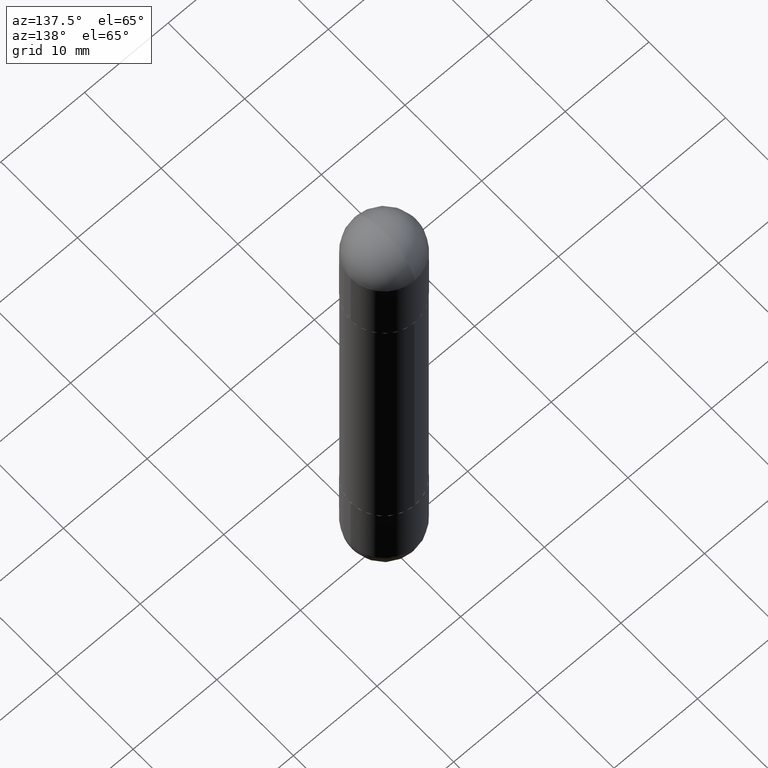
[diagram: clean part render]
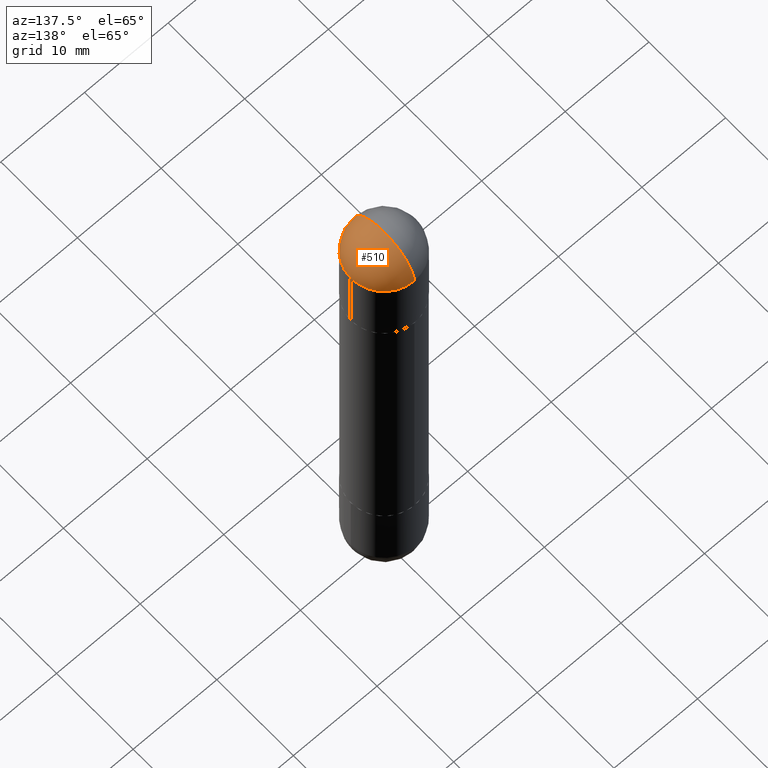
[diagram: same view with one face highlighted and labeled with its STEP entity id]
A machine part, auxiliary view. The second image highlights one B-rep face of the part: STEP entity #510.
In plain terms, the highlighted spherical surface has radius 3.9688 mm.
Its self-contained STEP definition (entity closure, byte-faithful):
#26 = DIRECTION ( 'NONE',  ( -6.982962677686265922E-15, -1.000000000000000000, 0.000000000000000000 ) ) ;
#46 = EDGE_LOOP ( 'NONE', ( #189, #570, #107, #465 ) ) ;
#101 = CARTESIAN_POINT ( 'NONE',  ( 1.091087918388535577E-15, 0.1562499999999916733, -0.1562500000000000000 ) ) ;
#106 = DIRECTION ( 'NONE',  ( 2.445468806185136597E-29, -3.491481338843145583E-15, 1.000000000000000000 ) ) ;
#107 = ORIENTED_EDGE ( 'NONE', *, *, #258, .T. ) ;
#139 = DIRECTION ( 'NONE',  ( -1.000000000000000000, 6.982962677686265922E-15, 4.883557194083112340E-29 ) ) ;
#157 = CARTESIAN_POINT ( 'NONE',  ( 5.400447736582527652E-29, -8.657341756053672891E-15, -0.1562500000000005551 ) ) ;
#184 = AXIS2_PLACEMENT_3D ( 'NONE', #702, #644, #324 ) ;
#189 = ORIENTED_EDGE ( 'NONE', *, *, #386, .F. ) ;
#201 = CARTESIAN_POINT ( 'NONE',  ( 5.789233224183170584E-29, -9.193318162129576161E-15, -3.073328992872296367E-16 ) ) ;
#206 = CARTESIAN_POINT ( 'NONE',  ( 5.731567514496413899E-29, -8.183159387913622595E-15, -0.1562500000000005551 ) ) ;
#215 = DIRECTION ( 'NONE',  ( 1.000000000000000000, -6.860497997771530774E-15, -4.840798879624142912E-29 ) ) ;
#258 = EDGE_CURVE ( 'NONE', #319, #645, #526, .T. ) ;
#264 = FACE_OUTER_BOUND ( 'NONE', #46, .T. ) ;
#267 = AXIS2_PLACEMENT_3D ( 'NONE', #206, #106, #804 ) ;
#301 = AXIS2_PLACEMENT_3D ( 'NONE', #157, #139, #26 ) ;
#310 = VERTEX_POINT ( 'NONE', #101 ) ;
#319 = VERTEX_POINT ( 'NONE', #556 ) ;
#324 = DIRECTION ( 'NONE',  ( 1.000000000000000000, -6.982962677686262766E-15, 0.000000000000000000 ) ) ;
#342 = AXIS2_PLACEMENT_3D ( 'NONE', #807, #630, #437 ) ;
#386 = EDGE_CURVE ( 'NONE', #749, #310, #462, .T. ) ;
#395 = CIRCLE ( 'NONE', #477, 0.1562500000000002498 ) ;
#397 = EDGE_CURVE ( 'NONE', #749, #319, #395, .T. ) ;
#407 = DIRECTION ( 'NONE',  ( 6.860497997771530774E-15, 1.000000000000000000, 0.000000000000000000 ) ) ;
#437 = DIRECTION ( 'NONE',  ( 6.982962677686265922E-15, 1.000000000000000000, 3.496765431890251398E-15 ) ) ;
#462 = CIRCLE ( 'NONE', #301, 0.1562500000000002498 ) ;
#465 = ORIENTED_EDGE ( 'NONE', *, *, #703, .T. ) ;
#477 = AXIS2_PLACEMENT_3D ( 'NONE', #783, #215, #407 ) ;
#510 = ADVANCED_FACE ( 'NONE', ( #264 ), #810, .T. ) ;
#526 = CIRCLE ( 'NONE', #267, 0.1562500000000000000 ) ;
#556 = CARTESIAN_POINT ( 'NONE',  ( -1.071952812151746981E-15, -0.1562500000000085487, -0.1562500000000011102 ) ) ;
#570 = ORIENTED_EDGE ( 'NONE', *, *, #397, .T. ) ;
#599 = CIRCLE ( 'NONE', #184, 0.1562500000000000000 ) ;
#630 = DIRECTION ( 'NONE',  ( 1.000000000000000000, -6.982962677686265922E-15, -4.883557194083112340E-29 ) ) ;
#644 = DIRECTION ( 'NONE',  ( 2.445468806185136597E-29, -3.491481338843145583E-15, 1.000000000000000000 ) ) ;
#645 = VERTEX_POINT ( 'NONE', #648 ) ;
#648 = CARTESIAN_POINT ( 'NONE',  ( 0.1562500000000000000, -8.674148951188436448E-15, -0.1562500000000005551 ) ) ;
#702 = CARTESIAN_POINT ( 'NONE',  ( 5.731567514496413899E-29, -8.183159387913622595E-15, -0.1562500000000005551 ) ) ;
#703 = EDGE_CURVE ( 'NONE', #645, #310, #599, .T. ) ;
#749 = VERTEX_POINT ( 'NONE', #201 ) ;
#783 = CARTESIAN_POINT ( 'NONE',  ( 5.400447736582527652E-29, -8.657341756053672891E-15, -0.1562500000000005551 ) ) ;
#804 = DIRECTION ( 'NONE',  ( 1.000000000000000000, -6.982962677686262766E-15, 0.000000000000000000 ) ) ;
#807 = CARTESIAN_POINT ( 'NONE',  ( 5.400447736582527652E-29, -8.657341756053672891E-15, -0.1562500000000005551 ) ) ;
#810 = SPHERICAL_SURFACE ( 'NONE', #342, 0.1562500000000002498 ) ;